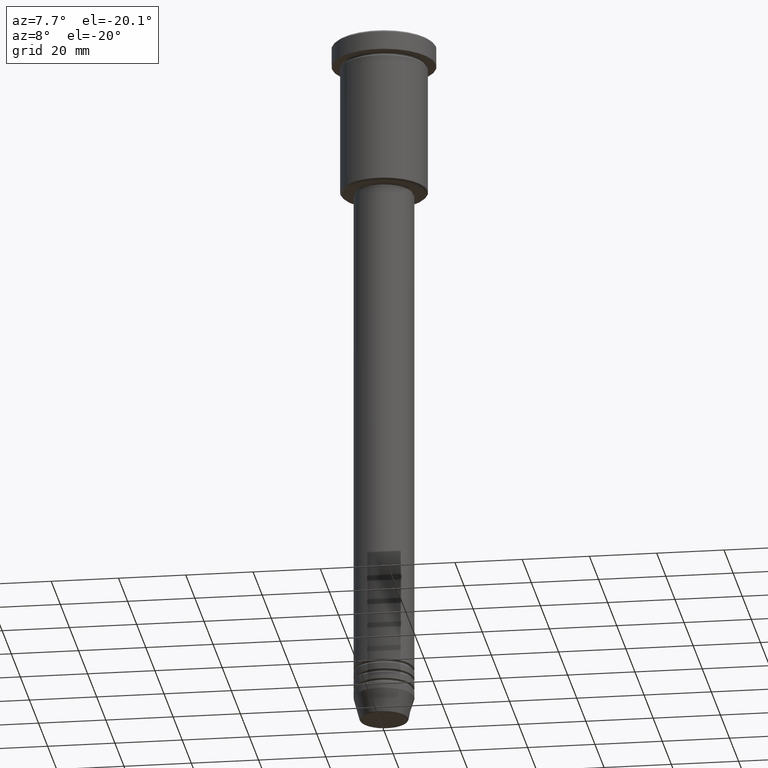
[diagram: clean part render]
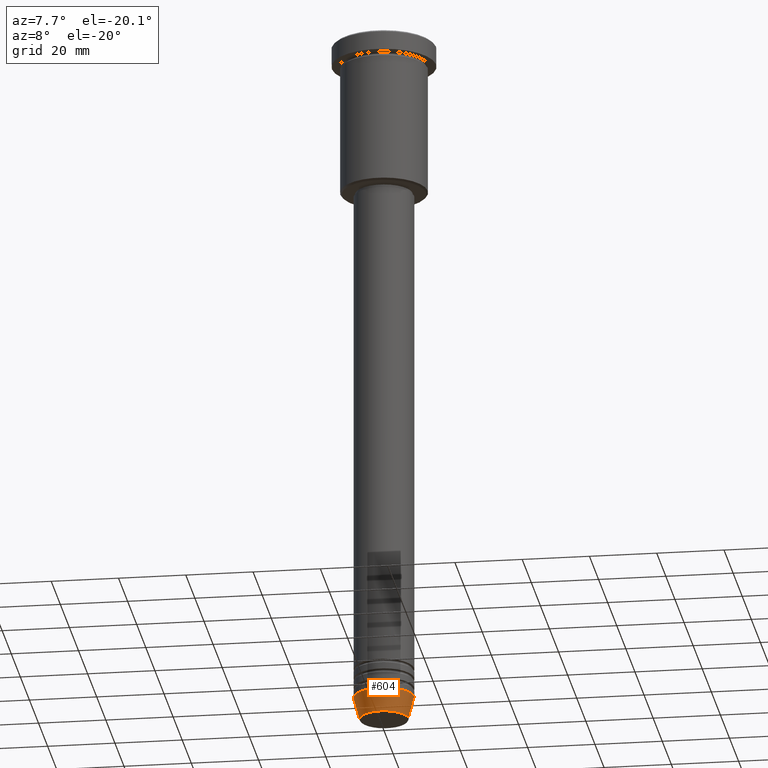
[diagram: same view with one face highlighted and labeled with its STEP entity id]
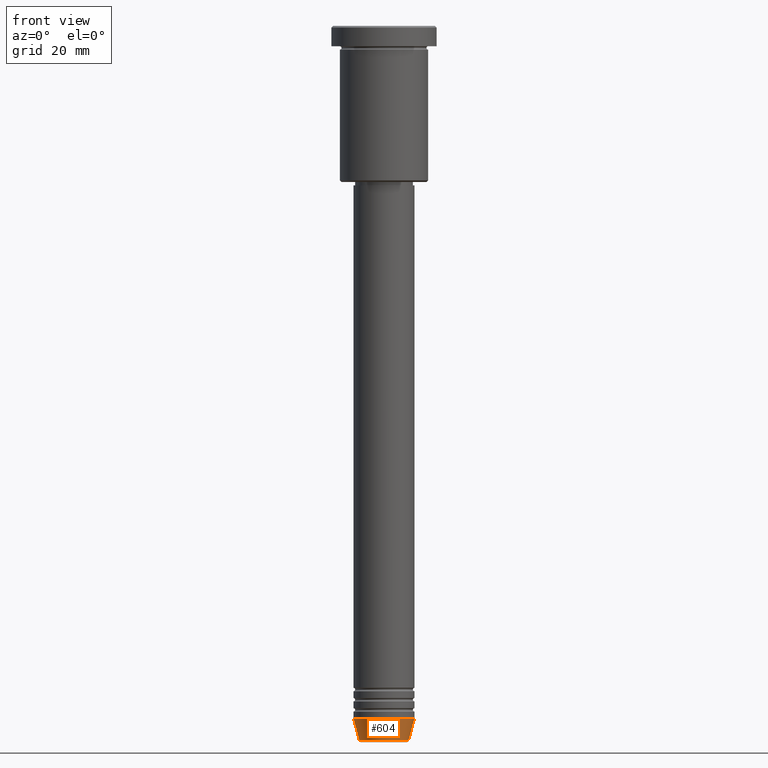
[diagram: same view with one face highlighted and labeled with its STEP entity id]
A machine part, auxiliary view. The second image highlights one B-rep face of the part: STEP entity #604.
A second angle (front view) of the same face is appended — the face is thin or edge-on in the first view.
In plain terms, the highlighted conical surface has half-angle 15 deg.
Its self-contained STEP definition (entity closure, byte-faithful):
#39 = ORIENTED_EDGE ( 'NONE', *, *, #361, .F. ) ;
#44 = LINE ( 'NONE', #428, #299 ) ;
#58 = CARTESIAN_POINT ( 'NONE',  ( 9.000000000000000000, 0.000000000000000000, -204.0000000000000284 ) ) ;
#112 = DIRECTION ( 'NONE',  ( -0.000000000000000000, -0.000000000000000000, 1.000000000000000000 ) ) ;
#204 = FACE_OUTER_BOUND ( 'NONE', #859, .T. ) ;
#215 = CIRCLE ( 'NONE', #579, 7.223655072137196598 ) ;
#223 = VERTEX_POINT ( 'NONE', #1127 ) ;
#299 = VECTOR ( 'NONE', #420, 1000.000000000000000 ) ;
#361 = EDGE_CURVE ( 'NONE', #711, #1107, #415, .T. ) ;
#378 = ORIENTED_EDGE ( 'NONE', *, *, #1041, .T. ) ;
#389 = DIRECTION ( 'NONE',  ( 1.000000000000000000, 0.000000000000000000, 0.000000000000000000 ) ) ;
#415 = CIRCLE ( 'NONE', #1138, 9.000000000000000000 ) ;
#420 = DIRECTION ( 'NONE',  ( -0.2588190451025213501, 3.169619151431772337E-17, 0.9659258262890680902 ) ) ;
#428 = CARTESIAN_POINT ( 'NONE',  ( -9.000000000000000000, 1.102182119232617714E-15, -204.0000000000000284 ) ) ;
#454 = CONICAL_SURFACE ( 'NONE', #1065, 9.000000000000000000, 0.2617993877991500740 ) ;
#471 = DIRECTION ( 'NONE',  ( -0.000000000000000000, -0.000000000000000000, 1.000000000000000000 ) ) ;
#479 = CARTESIAN_POINT ( 'NONE',  ( 0.000000000000000000, 0.000000000000000000, -204.0000000000000284 ) ) ;
#569 = VERTEX_POINT ( 'NONE', #994 ) ;
#579 = AXIS2_PLACEMENT_3D ( 'NONE', #961, #471, #744 ) ;
#589 = CARTESIAN_POINT ( 'NONE',  ( -9.000000000000000000, 1.102182119232617714E-15, -204.0000000000000284 ) ) ;
#603 = DIRECTION ( 'NONE',  ( 0.2588190451025213501, 0.000000000000000000, 0.9659258262890680902 ) ) ;
#604 = ADVANCED_FACE ( 'NONE', ( #204 ), #454, .T. ) ;
#609 = DIRECTION ( 'NONE',  ( -0.000000000000000000, -0.000000000000000000, 1.000000000000000000 ) ) ;
#711 = VERTEX_POINT ( 'NONE', #589 ) ;
#744 = DIRECTION ( 'NONE',  ( 1.000000000000000000, 0.000000000000000000, 0.000000000000000000 ) ) ;
#745 = EDGE_CURVE ( 'NONE', #223, #711, #44, .T. ) ;
#750 = EDGE_CURVE ( 'NONE', #569, #1107, #1156, .T. ) ;
#859 = EDGE_LOOP ( 'NONE', ( #1083, #378, #946, #39 ) ) ;
#871 = DIRECTION ( 'NONE',  ( 1.000000000000000000, 0.000000000000000000, 0.000000000000000000 ) ) ;
#946 = ORIENTED_EDGE ( 'NONE', *, *, #750, .T. ) ;
#961 = CARTESIAN_POINT ( 'NONE',  ( 0.000000000000000000, 0.000000000000000000, -210.6294095225512990 ) ) ;
#979 = VECTOR ( 'NONE', #603, 1000.000000000000000 ) ;
#994 = CARTESIAN_POINT ( 'NONE',  ( 7.223655072137196598, 0.000000000000000000, -210.6294095225512990 ) ) ;
#1041 = EDGE_CURVE ( 'NONE', #223, #569, #215, .T. ) ;
#1065 = AXIS2_PLACEMENT_3D ( 'NONE', #479, #112, #389 ) ;
#1083 = ORIENTED_EDGE ( 'NONE', *, *, #745, .F. ) ;
#1107 = VERTEX_POINT ( 'NONE', #1111 ) ;
#1111 = CARTESIAN_POINT ( 'NONE',  ( 9.000000000000000000, 0.000000000000000000, -204.0000000000000284 ) ) ;
#1127 = CARTESIAN_POINT ( 'NONE',  ( -7.223655072137197486, 9.934123627281769054E-16, -210.6294095225512990 ) ) ;
#1138 = AXIS2_PLACEMENT_3D ( 'NONE', #1151, #609, #871 ) ;
#1151 = CARTESIAN_POINT ( 'NONE',  ( 0.000000000000000000, 0.000000000000000000, -204.0000000000000284 ) ) ;
#1156 = LINE ( 'NONE', #58, #979 ) ;